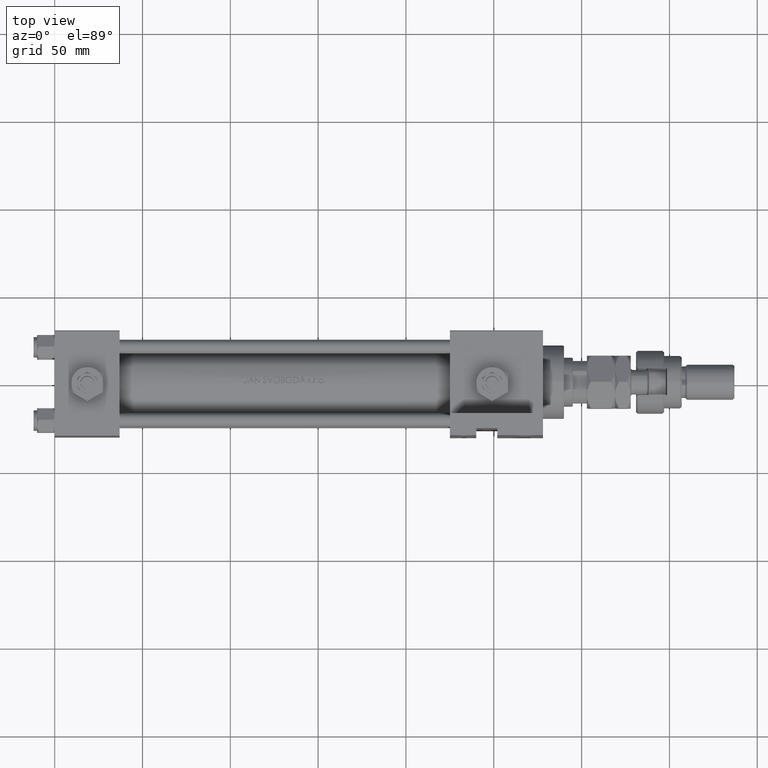
[diagram: clean part render]
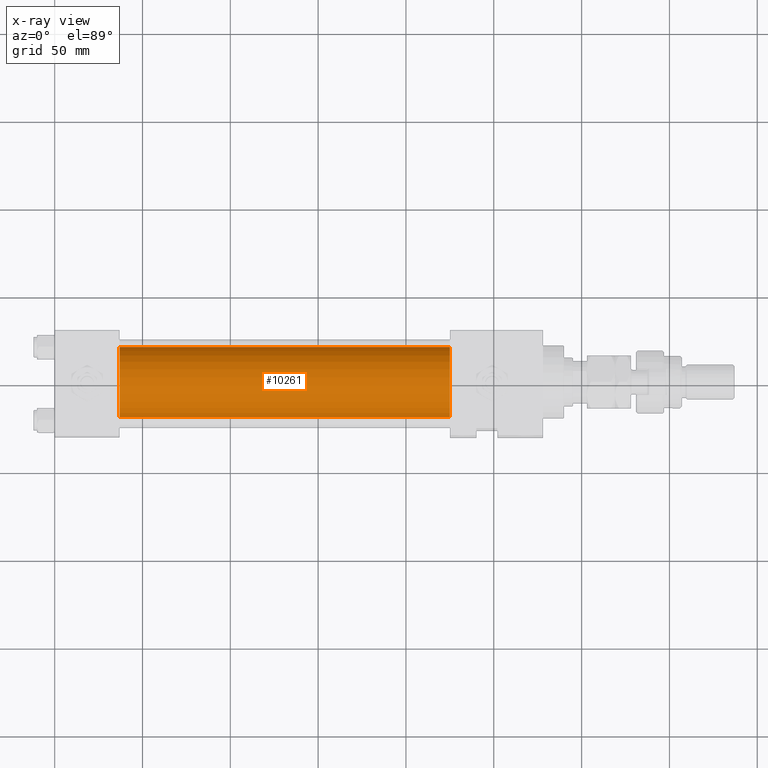
[diagram: x-ray — body ghosted, one internal face saturated and labeled with its STEP entity id]
A machine part, top view, then the same camera in x-ray: the body is ghosted and one INTERNAL B-rep face — a face not visible from any outside direction — is saturated and labeled: STEP entity #10261.
In plain terms, the highlighted cylindrical surface (edge-blend (fillet) strip) has radius 20 mm, axis along (-1, -0, 0).
Its self-contained STEP definition (entity closure, byte-faithful):
#901 = AXIS2_PLACEMENT_3D ( 'NONE', #22818, #17959, #47478 ) ;
#6554 = DIRECTION ( 'NONE',  ( 0.000000000000000000, 0.000000000000000000, 1.000000000000000000 ) ) ;
#7160 = EDGE_CURVE ( 'NONE', #38849, #38227, #47844, .T. ) ;
#10061 = CYLINDRICAL_SURFACE ( 'NONE', #29336, 20.00000000000000000 ) ;
#10154 = CARTESIAN_POINT ( 'NONE',  ( 225.0000000000000000, 2.326828918379970970E-15, -19.00000000000000000 ) ) ;
#10157 = CARTESIAN_POINT ( 'NONE',  ( 225.0000000000000000, -1.224646799147354686E-16, 21.00000000000000000 ) ) ;
#10261 = ADVANCED_FACE ( 'NONE', ( #14418 ), #10061, .F. ) ;
#10722 = VERTEX_POINT ( 'NONE', #37931 ) ;
#11436 = VERTEX_POINT ( 'NONE', #41960 ) ;
#14271 = ORIENTED_EDGE ( 'NONE', *, *, #46096, .T. ) ;
#14418 = FACE_OUTER_BOUND ( 'NONE', #38734, .T. ) ;
#14698 = CARTESIAN_POINT ( 'NONE',  ( 225.0000000000000000, -1.224646799147354686E-16, 1.000000000000000888 ) ) ;
#14792 = DIRECTION ( 'NONE',  ( -1.000000000000000000, -0.000000000000000000, -0.000000000000000000 ) ) ;
#15570 = CARTESIAN_POINT ( 'NONE',  ( 225.0000000000000000, 2.326828918379970970E-15, -19.00000000000000000 ) ) ;
#17959 = DIRECTION ( 'NONE',  ( 1.000000000000000000, 0.000000000000000000, 0.000000000000000000 ) ) ;
#20092 = DIRECTION ( 'NONE',  ( 0.000000000000000000, 0.000000000000000000, -1.000000000000000000 ) ) ;
#20182 = VECTOR ( 'NONE', #43264, 1000.000000000000000 ) ;
#21467 = ORIENTED_EDGE ( 'NONE', *, *, #44449, .F. ) ;
#22818 = CARTESIAN_POINT ( 'NONE',  ( 37.00000000000000000, -1.224646799147354686E-16, 1.000000000000000888 ) ) ;
#23884 = EDGE_CURVE ( 'NONE', #38849, #10722, #39468, .T. ) ;
#24359 = ORIENTED_EDGE ( 'NONE', *, *, #23884, .F. ) ;
#26841 = CARTESIAN_POINT ( 'NONE',  ( 225.0000000000000000, -1.224646799147354686E-16, 21.00000000000000000 ) ) ;
#29336 = AXIS2_PLACEMENT_3D ( 'NONE', #14698, #35847, #6554 ) ;
#35847 = DIRECTION ( 'NONE',  ( -1.000000000000000000, -0.000000000000000000, -0.000000000000000000 ) ) ;
#36366 = CARTESIAN_POINT ( 'NONE',  ( 225.0000000000000000, -1.224646799147354686E-16, 1.000000000000000888 ) ) ;
#37442 = DIRECTION ( 'NONE',  ( 1.000000000000000000, 0.000000000000000000, 0.000000000000000000 ) ) ;
#37931 = CARTESIAN_POINT ( 'NONE',  ( 37.00000000000000000, -1.224646799147354686E-16, 21.00000000000000000 ) ) ;
#38227 = VERTEX_POINT ( 'NONE', #15570 ) ;
#38734 = EDGE_LOOP ( 'NONE', ( #44890, #14271, #21467, #24359 ) ) ;
#38849 = VERTEX_POINT ( 'NONE', #26841 ) ;
#39199 = LINE ( 'NONE', #10154, #40298 ) ;
#39468 = LINE ( 'NONE', #10157, #20182 ) ;
#40298 = VECTOR ( 'NONE', #14792, 1000.000000000000000 ) ;
#41960 = CARTESIAN_POINT ( 'NONE',  ( 37.00000000000000000, 2.326828918379970970E-15, -19.00000000000000000 ) ) ;
#43264 = DIRECTION ( 'NONE',  ( -1.000000000000000000, -0.000000000000000000, -0.000000000000000000 ) ) ;
#44449 = EDGE_CURVE ( 'NONE', #10722, #11436, #49430, .T. ) ;
#44890 = ORIENTED_EDGE ( 'NONE', *, *, #7160, .T. ) ;
#46096 = EDGE_CURVE ( 'NONE', #38227, #11436, #39199, .T. ) ;
#47478 = DIRECTION ( 'NONE',  ( 0.000000000000000000, 0.000000000000000000, -1.000000000000000000 ) ) ;
#47844 = CIRCLE ( 'NONE', #48731, 20.00000000000000000 ) ;
#48731 = AXIS2_PLACEMENT_3D ( 'NONE', #36366, #37442, #20092 ) ;
#49430 = CIRCLE ( 'NONE', #901, 20.00000000000000000 ) ;